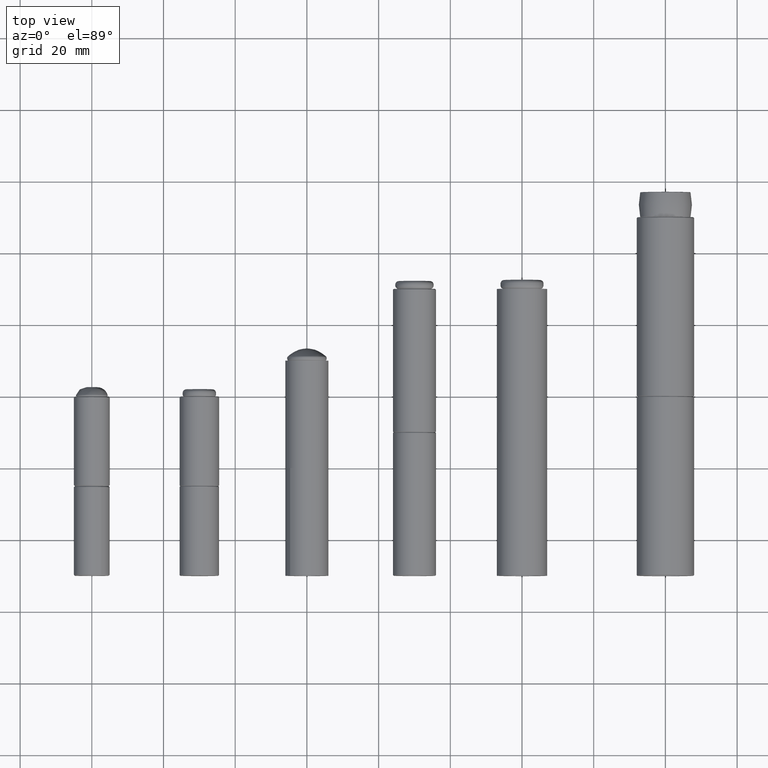
[diagram: clean part render]
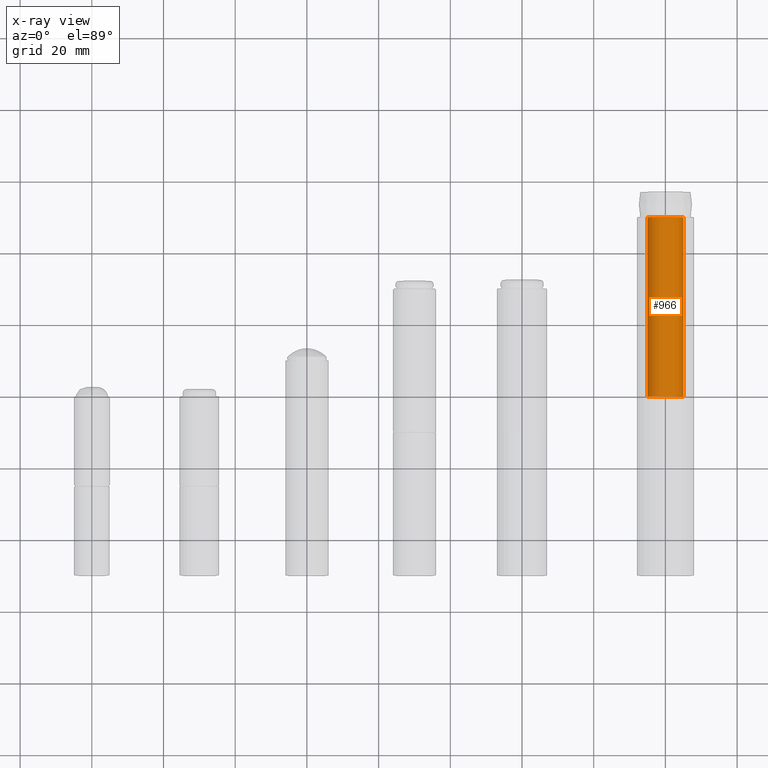
[diagram: x-ray — body ghosted, one internal face saturated and labeled with its STEP entity id]
A machine part, top view, then the same camera in x-ray: the body is ghosted and one INTERNAL B-rep face — a face not visible from any outside direction — is saturated and labeled: STEP entity #966.
In plain terms, the highlighted cylindrical surface (bore or boss wall) has radius 5 mm, axis along (-0, 1, -0).
Its self-contained STEP definition (entity closure, byte-faithful):
#274=FACE_BOUND('',#491,.T.);
#351=FACE_OUTER_BOUND('',#490,.T.);
#490=EDGE_LOOP('',(#866));
#491=EDGE_LOOP('',(#867));
#563=CIRCLE('',#1154,5.);
#565=CIRCLE('',#1158,5.);
#637=VERTEX_POINT('',#1861);
#639=VERTEX_POINT('',#1867);
#713=EDGE_CURVE('',#637,#637,#563,.T.);
#715=EDGE_CURVE('',#639,#639,#565,.T.);
#866=ORIENTED_EDGE('',*,*,#715,.F.);
#867=ORIENTED_EDGE('',*,*,#713,.F.);
#889=CYLINDRICAL_SURFACE('',#1159,5.);
#966=ADVANCED_FACE('',(#351,#274),#889,.F.);
#1154=AXIS2_PLACEMENT_3D('',#1862,#1521,#1522);
#1158=AXIS2_PLACEMENT_3D('',#1868,#1529,#1530);
#1159=AXIS2_PLACEMENT_3D('',#1869,#1531,#1532);
#1521=DIRECTION('center_axis',(0.,0.,1.));
#1522=DIRECTION('ref_axis',(-1.,0.,0.));
#1529=DIRECTION('center_axis',(0.,0.,-1.));
#1530=DIRECTION('ref_axis',(-1.,0.,0.));
#1531=DIRECTION('center_axis',(0.,0.,1.));
#1532=DIRECTION('ref_axis',(-1.,0.,0.));
#1861=CARTESIAN_POINT('',(5.,6.12323399573677E-16,0.));
#1862=CARTESIAN_POINT('Origin',(0.,0.,0.));
#1867=CARTESIAN_POINT('',(5.,6.12323399573677E-16,50.));
#1868=CARTESIAN_POINT('Origin',(0.,0.,50.));
#1869=CARTESIAN_POINT('Origin',(0.,0.,0.));